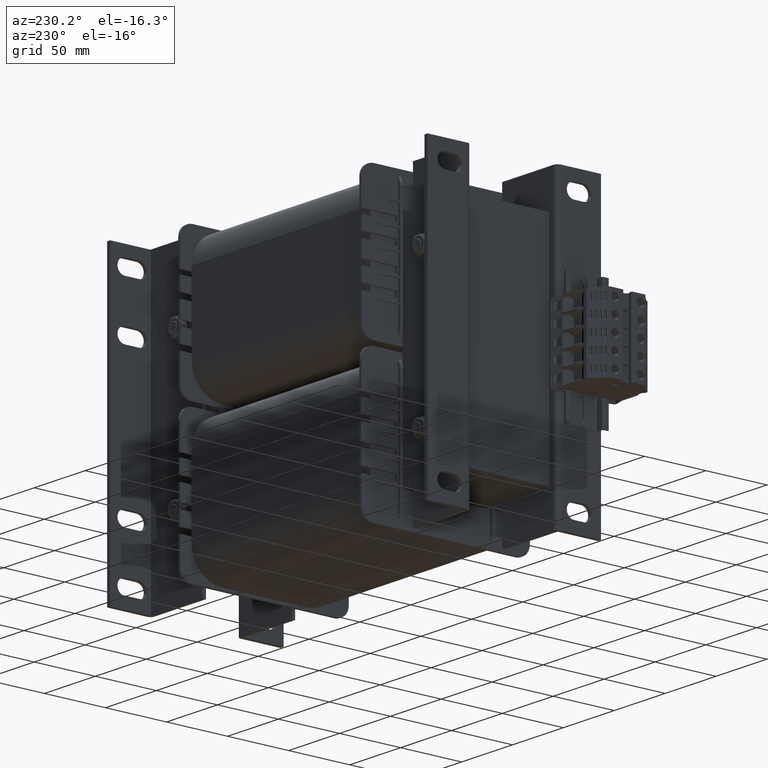
[diagram: clean part render]
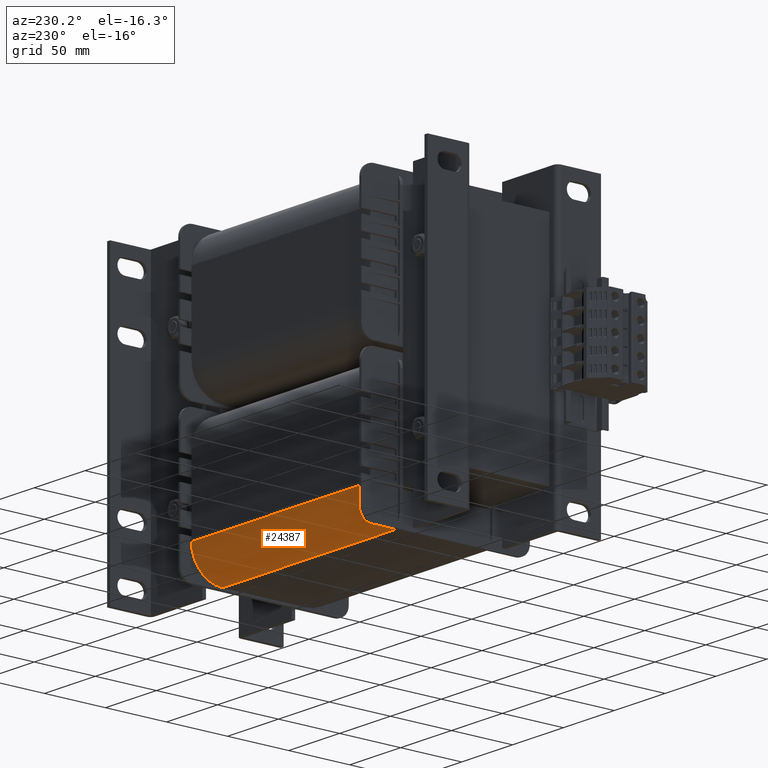
[diagram: same view with one face highlighted and labeled with its STEP entity id]
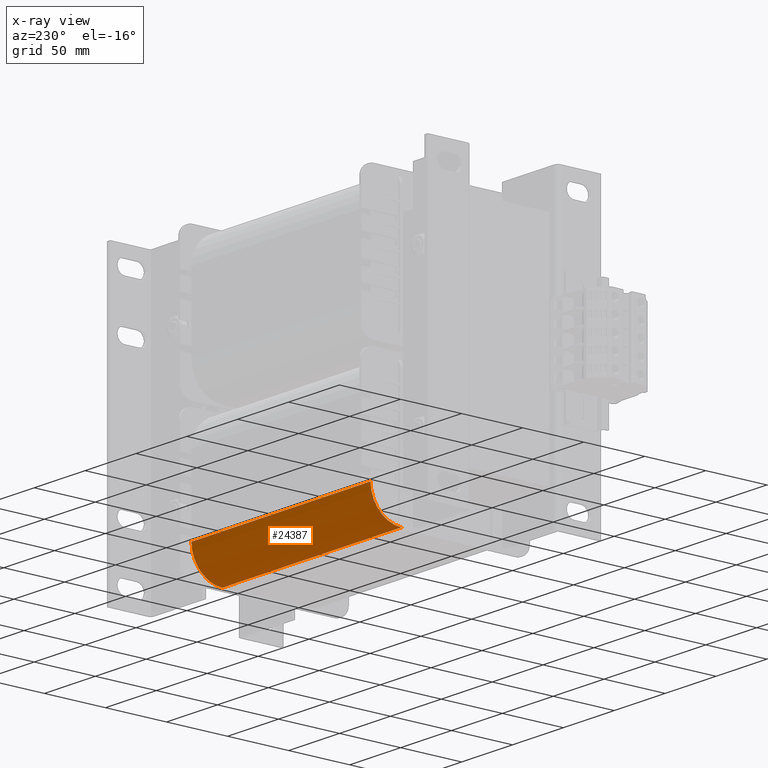
[diagram: x-ray of the same camera — body ghosted, the highlighted face saturated]
A machine part, auxiliary view. The second image highlights one B-rep face of the part: STEP entity #24387.
The next image is the same camera in x-ray: the body ghosted, the highlighted face saturated — about 0% of this face is hidden behind the body in this view.
In plain terms, the highlighted cylindrical surface (partial cylindrical patch) has radius 25.3692 mm, axis along (-1, -0, -0).
Its self-contained STEP definition (entity closure, byte-faithful):
#1187=CIRCLE('',#26138,25.3691630029813);
#1188=CIRCLE('',#26139,25.3691630029813);
#1981=CYLINDRICAL_SURFACE('',#26137,25.3691630029813);
#2505=FACE_OUTER_BOUND('',#3895,.T.);
#3895=EDGE_LOOP('',(#16882,#16883,#16884,#16885));
#5390=LINE('',#36036,#7979);
#5413=LINE('',#36083,#8002);
#7979=VECTOR('',#28838,10.);
#8002=VECTOR('',#28885,10.);
#10569=VERTEX_POINT('',#36033);
#10570=VERTEX_POINT('',#36035);
#10581=VERTEX_POINT('',#36080);
#10582=VERTEX_POINT('',#36082);
#12971=EDGE_CURVE('',#10569,#10570,#5390,.T.);
#13000=EDGE_CURVE('',#10582,#10581,#5413,.T.);
#13002=EDGE_CURVE('',#10570,#10581,#1187,.T.);
#13003=EDGE_CURVE('',#10582,#10569,#1188,.T.);
#16882=ORIENTED_EDGE('',*,*,#13002,.F.);
#16883=ORIENTED_EDGE('',*,*,#12971,.F.);
#16884=ORIENTED_EDGE('',*,*,#13003,.F.);
#16885=ORIENTED_EDGE('',*,*,#13000,.T.);
#24387=ADVANCED_FACE('',(#2505),#1981,.T.);
#26137=AXIS2_PLACEMENT_3D('',#36085,#28887,#28888);
#26138=AXIS2_PLACEMENT_3D('',#36086,#28889,#28890);
#26139=AXIS2_PLACEMENT_3D('',#36087,#28891,#28892);
#28838=DIRECTION('',(0.,1.,0.));
#28885=DIRECTION('',(0.,1.,0.));
#28887=DIRECTION('center_axis',(0.,1.,0.));
#28888=DIRECTION('ref_axis',(-1.,0.,9.78008779848481E-13));
#28889=DIRECTION('center_axis',(0.,1.,0.));
#28890=DIRECTION('ref_axis',(-1.,0.,9.78008779848481E-13));
#28891=DIRECTION('center_axis',(0.,-1.,0.));
#28892=DIRECTION('ref_axis',(-1.,0.,9.78008779848481E-13));
#36033=CARTESIAN_POINT('',(-64.8691630029813,2.,30.5000000000248));
#36035=CARTESIAN_POINT('',(-64.8691630029813,178.,30.5000000000248));
#36036=CARTESIAN_POINT('',(-64.8691630029813,2.,30.5000000000248));
#36080=CARTESIAN_POINT('',(-39.4999999999709,178.,55.8691630029813));
#36082=CARTESIAN_POINT('',(-39.4999999999709,2.,55.8691630029813));
#36083=CARTESIAN_POINT('',(-39.4999999999709,2.,55.8691630029813));
#36085=CARTESIAN_POINT('Origin',(-39.5,2.,30.5));
#36086=CARTESIAN_POINT('Origin',(-39.5,178.,30.5));
#36087=CARTESIAN_POINT('Origin',(-39.5,2.,30.5));